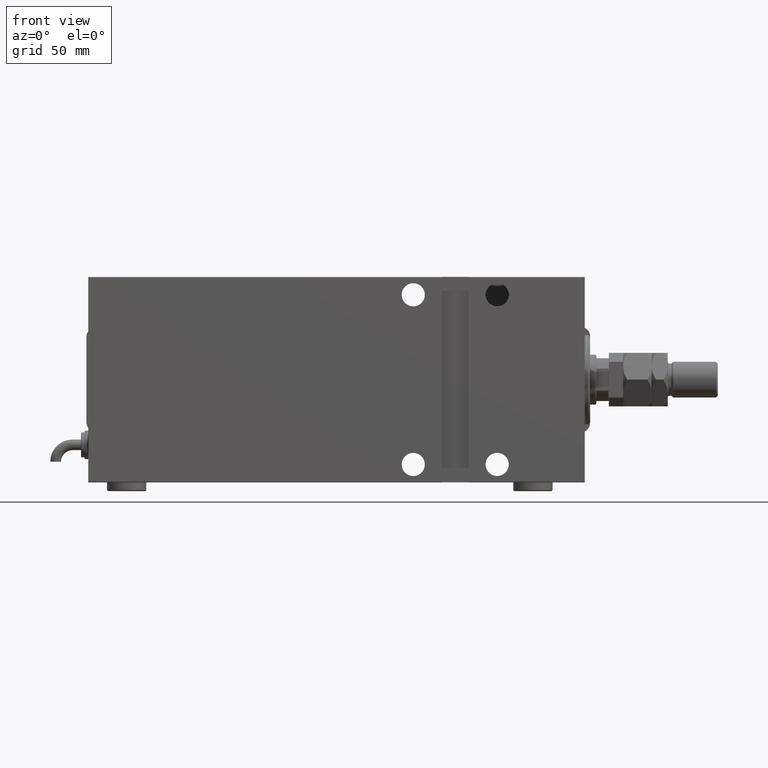
[diagram: clean part render]
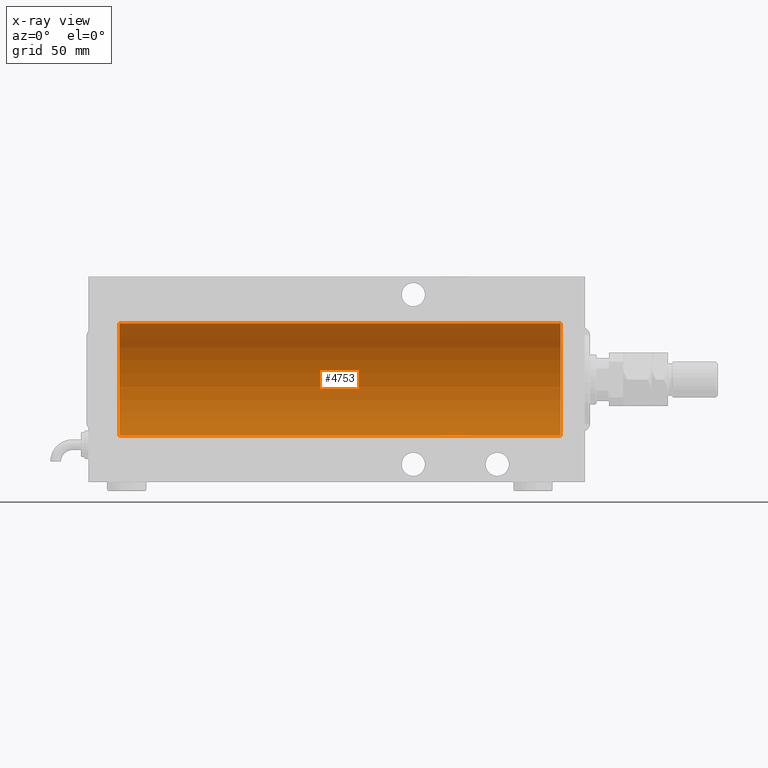
[diagram: x-ray — body ghosted, one internal face saturated and labeled with its STEP entity id]
A machine part, front view, then the same camera in x-ray: the body is ghosted and one INTERNAL B-rep face — a face not visible from any outside direction — is saturated and labeled: STEP entity #4753.
In plain terms, the highlighted cylindrical surface (partial cylindrical patch) has radius 31.5 mm, axis along (1, 0, -0).
Its self-contained STEP definition (entity closure, byte-faithful):
#2246 = EDGE_CURVE ( 'NONE', #8454, #39194, #33927, .T. ) ;
#3284 = LINE ( 'NONE', #30793, #21049 ) ;
#4753 = ADVANCED_FACE ( 'NONE', ( #23013 ), #41869, .F. ) ;
#5555 = VERTEX_POINT ( 'NONE', #53430 ) ;
#5746 = DIRECTION ( 'NONE',  ( 0.000000000000000000, 0.000000000000000000, 1.000000000000000000 ) ) ;
#8341 = CIRCLE ( 'NONE', #52802, 31.50000000000000000 ) ;
#8454 = VERTEX_POINT ( 'NONE', #19860 ) ;
#12236 = DIRECTION ( 'NONE',  ( -1.000000000000000000, -0.000000000000000000, -0.000000000000000000 ) ) ;
#14032 = DIRECTION ( 'NONE',  ( 0.000000000000000000, 0.000000000000000000, 1.000000000000000000 ) ) ;
#17365 = CIRCLE ( 'NONE', #42098, 31.50000000000000000 ) ;
#19860 = CARTESIAN_POINT ( 'NONE',  ( 260.5000000000000000, 3.857637417314162689E-15, -31.50000000000000000 ) ) ;
#20204 = VERTEX_POINT ( 'NONE', #61129 ) ;
#21049 = VECTOR ( 'NONE', #12236, 1000.000000000000000 ) ;
#23013 = FACE_OUTER_BOUND ( 'NONE', #34721, .T. ) ;
#23101 = CARTESIAN_POINT ( 'NONE',  ( 13.50000000000001243, 3.857637417314162689E-15, -31.50000000000000000 ) ) ;
#24638 = DIRECTION ( 'NONE',  ( -1.000000000000000000, -0.000000000000000000, -0.000000000000000000 ) ) ;
#27493 = ORIENTED_EDGE ( 'NONE', *, *, #44000, .F. ) ;
#28675 = ORIENTED_EDGE ( 'NONE', *, *, #50735, .T. ) ;
#29448 = CARTESIAN_POINT ( 'NONE',  ( 13.50000000000001243, 0.000000000000000000, 0.000000000000000000 ) ) ;
#30793 = CARTESIAN_POINT ( 'NONE',  ( 260.5000000000000000, 0.000000000000000000, 31.50000000000000000 ) ) ;
#32997 = ORIENTED_EDGE ( 'NONE', *, *, #46371, .F. ) ;
#33573 = CARTESIAN_POINT ( 'NONE',  ( 260.5000000000000000, 0.000000000000000000, 0.000000000000000000 ) ) ;
#33927 = LINE ( 'NONE', #39455, #50110 ) ;
#34721 = EDGE_LOOP ( 'NONE', ( #32997, #40542, #28675, #27493 ) ) ;
#39194 = VERTEX_POINT ( 'NONE', #23101 ) ;
#39455 = CARTESIAN_POINT ( 'NONE',  ( 260.5000000000000000, 3.857637417314162689E-15, -31.50000000000000000 ) ) ;
#40542 = ORIENTED_EDGE ( 'NONE', *, *, #2246, .T. ) ;
#41869 = CYLINDRICAL_SURFACE ( 'NONE', #51130, 31.50000000000000000 ) ;
#42098 = AXIS2_PLACEMENT_3D ( 'NONE', #29448, #53253, #53561 ) ;
#44000 = EDGE_CURVE ( 'NONE', #5555, #20204, #3284, .T. ) ;
#46371 = EDGE_CURVE ( 'NONE', #8454, #5555, #8341, .T. ) ;
#50110 = VECTOR ( 'NONE', #24638, 1000.000000000000000 ) ;
#50735 = EDGE_CURVE ( 'NONE', #39194, #20204, #17365, .T. ) ;
#51130 = AXIS2_PLACEMENT_3D ( 'NONE', #56387, #60727, #14032 ) ;
#52434 = DIRECTION ( 'NONE',  ( -1.000000000000000000, 0.000000000000000000, 0.000000000000000000 ) ) ;
#52802 = AXIS2_PLACEMENT_3D ( 'NONE', #33573, #52434, #5746 ) ;
#53253 = DIRECTION ( 'NONE',  ( -1.000000000000000000, 0.000000000000000000, 0.000000000000000000 ) ) ;
#53430 = CARTESIAN_POINT ( 'NONE',  ( 260.5000000000000000, 0.000000000000000000, 31.50000000000000000 ) ) ;
#53561 = DIRECTION ( 'NONE',  ( 0.000000000000000000, 0.000000000000000000, 1.000000000000000000 ) ) ;
#56387 = CARTESIAN_POINT ( 'NONE',  ( 260.5000000000000000, 0.000000000000000000, 0.000000000000000000 ) ) ;
#60727 = DIRECTION ( 'NONE',  ( -1.000000000000000000, -0.000000000000000000, -0.000000000000000000 ) ) ;
#61129 = CARTESIAN_POINT ( 'NONE',  ( 13.50000000000001243, 0.000000000000000000, 31.50000000000000000 ) ) ;